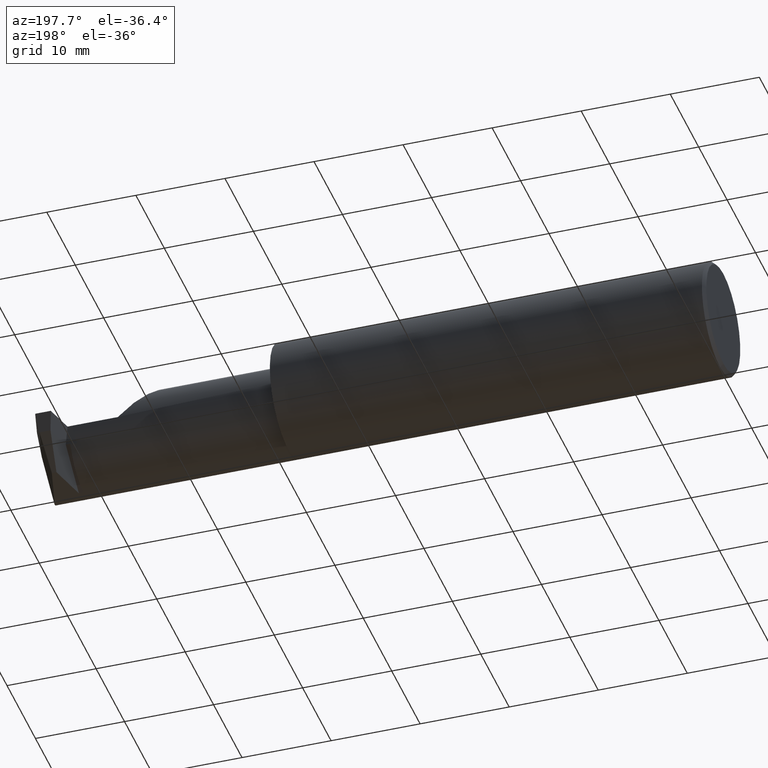
[diagram: clean part render]
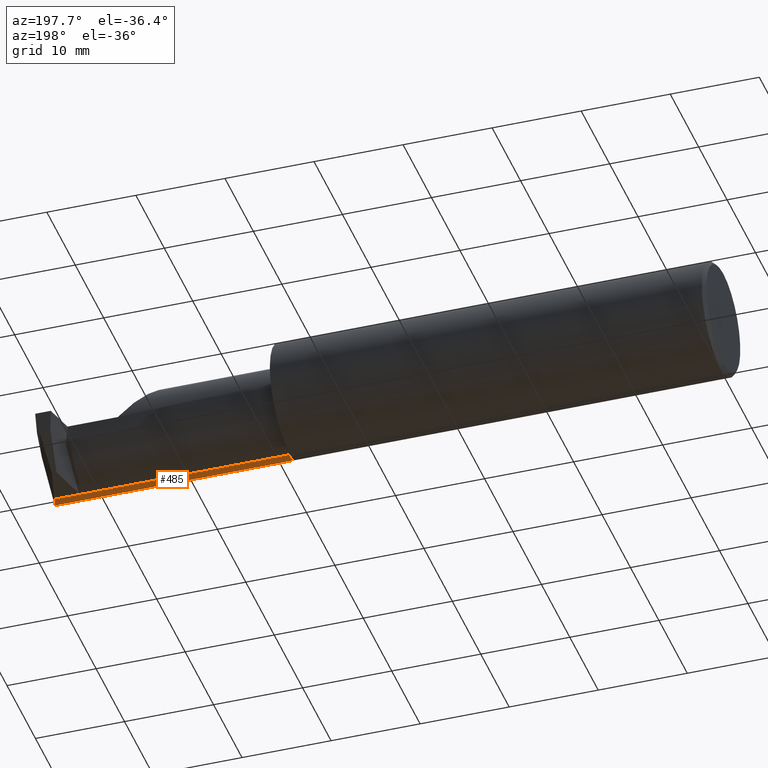
[diagram: same view with one face highlighted and labeled with its STEP entity id]
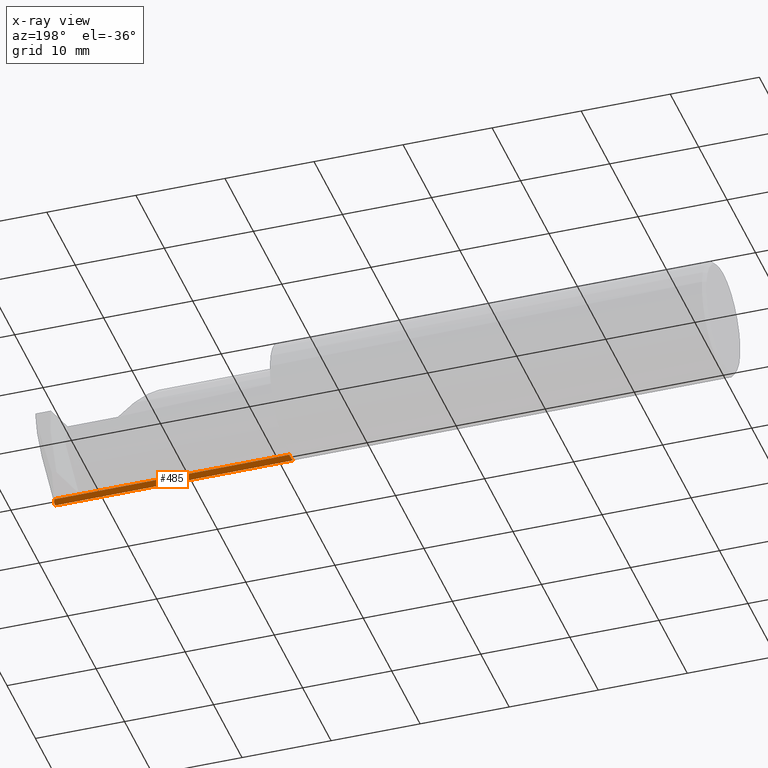
[diagram: x-ray of the same camera — body ghosted, the highlighted face saturated]
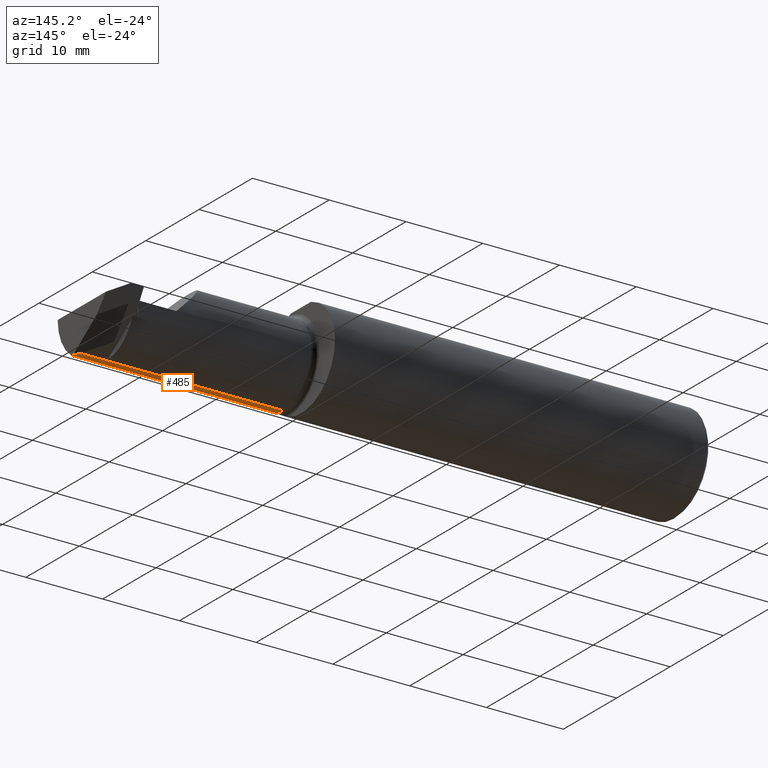
[diagram: same view with one face highlighted and labeled with its STEP entity id]
A machine part, auxiliary view. The second image highlights one B-rep face of the part: STEP entity #485.
The next image is the same camera in x-ray: the body ghosted, the highlighted face saturated — about 0% of this face is hidden behind the body in this view.
A second angle (auxiliary view) of the same face is appended — the face is thin or edge-on in the first view.
In plain terms, the highlighted cylindrical surface (partial cylindrical patch) has radius 5.2578 mm, axis along (-1, -0, -0).
Its self-contained STEP definition (entity closure, byte-faithful):
#9 = VECTOR ( 'NONE', #52, 39.37007874015748143 ) ;
#17 = CARTESIAN_POINT ( 'NONE',  ( 2.988377121087915977, -0.09685000000000003328, -0.2069999999999999341 ) ) ;
#19 = CARTESIAN_POINT ( 'NONE',  ( 1.950000000000000178, -0.09684999999999999165, -0.2070000000000000173 ) ) ;
#23 = EDGE_CURVE ( 'NONE', #37, #337, #227, .T. ) ;
#31 = DIRECTION ( 'NONE',  ( 1.000000000000000000, 0.000000000000000000, 0.000000000000000000 ) ) ;
#32 = ORIENTED_EDGE ( 'NONE', *, *, #887, .F. ) ;
#34 = FACE_OUTER_BOUND ( 'NONE', #805, .T. ) ;
#37 = VERTEX_POINT ( 'NONE', #773 ) ;
#52 = DIRECTION ( 'NONE',  ( -1.000000000000000000, -0.000000000000000000, -0.000000000000000000 ) ) ;
#96 = CARTESIAN_POINT ( 'NONE',  ( 2.991809236970782049, -0.1101210074274882600, -0.2069999999999999618 ) ) ;
#114 = LINE ( 'NONE', #616, #9 ) ;
#128 = DIRECTION ( 'NONE',  ( -1.000000000000000000, -0.000000000000000000, -0.000000000000000000 ) ) ;
#131 = CARTESIAN_POINT ( 'NONE',  ( 1.925000000000000266, -0.09685000000000000553, 0.000000000000000000 ) ) ;
#136 = VERTEX_POINT ( 'NONE', #909 ) ;
#144 = EDGE_CURVE ( 'NONE', #136, #337, #114, .T. ) ;
#172 = EDGE_CURVE ( 'NONE', #667, #37, #487, .T. ) ;
#214 = VECTOR ( 'NONE', #128, 39.37007874015748143 ) ;
#227 = CIRCLE ( 'NONE', #699, 0.2070000000000000173 ) ;
#257 = EDGE_CURVE ( 'NONE', #756, #519, #634, .T. ) ;
#265 = DIRECTION ( 'NONE',  ( -1.000000000000000000, -0.000000000000000000, -0.000000000000000000 ) ) ;
#275 = CARTESIAN_POINT ( 'NONE',  ( 3.000000000000000444, -0.09685000000000000553, 0.000000000000000000 ) ) ;
#296 = CARTESIAN_POINT ( 'NONE',  ( 2.988377121087915977, -0.09685000000000003328, -0.2069999999999999341 ) ) ;
#297 = ORIENTED_EDGE ( 'NONE', *, *, #23, .T. ) ;
#317 = DIRECTION ( 'NONE',  ( 0.000000000000000000, 0.000000000000000000, 1.000000000000000000 ) ) ;
#324 = CYLINDRICAL_SURFACE ( 'NONE', #896, 0.2070000000000000173 ) ;
#333 = CARTESIAN_POINT ( 'NONE',  ( 2.392500000000000071, -0.1494886164171399245, -0.2001953447552894949 ) ) ;
#337 = VERTEX_POINT ( 'NONE', #19 ) ;
#353 = CARTESIAN_POINT ( 'NONE',  ( 3.000000000000000444, -0.1363579360798492235, -0.2031947907469837944 ) ) ;
#394 = CIRCLE ( 'NONE', #789, 0.2069999999999999618 ) ;
#466 = LINE ( 'NONE', #895, #214 ) ;
#485 = ADVANCED_FACE ( 'NONE', ( #34 ), #324, .T. ) ;
#487 = LINE ( 'NONE', #333, #780 ) ;
#488 = DIRECTION ( 'NONE',  ( 0.000000000000000000, 0.000000000000000000, -1.000000000000000000 ) ) ;
#497 = DIRECTION ( 'NONE',  ( 1.000000000000000000, -0.000000000000000000, -0.000000000000000000 ) ) ;
#511 = CARTESIAN_POINT ( 'NONE',  ( 3.000000000000000444, -0.1494886164171398690, -0.2001953447552895227 ) ) ;
#519 = VERTEX_POINT ( 'NONE', #353 ) ;
#528 = ORIENTED_EDGE ( 'NONE', *, *, #172, .T. ) ;
#616 = CARTESIAN_POINT ( 'NONE',  ( 1.925000000000000266, -0.09684999999999999165, -0.2070000000000000173 ) ) ;
#634 =( BOUNDED_CURVE ( )  B_SPLINE_CURVE ( 3, ( #17, #96, #823, #673 ),
 .UNSPECIFIED., .F., .F. ) 
 B_SPLINE_CURVE_WITH_KNOTS ( ( 4, 4 ),
 ( 0.6108652381980214097, 0.8029030024377743491 ),
 .UNSPECIFIED. ) 
 CURVE ( )  GEOMETRIC_REPRESENTATION_ITEM ( )  RATIONAL_B_SPLINE_CURVE ( ( 1.000000000000000000, 0.9969291518527066964, 0.9969291518527066964, 1.000000000000000000 ) ) 
 REPRESENTATION_ITEM ( '' )  );
#667 = VERTEX_POINT ( 'NONE', #511 ) ;
#673 = CARTESIAN_POINT ( 'NONE',  ( 3.000000000000000444, -0.1363579360798492235, -0.2031947907469837944 ) ) ;
#687 = DIRECTION ( 'NONE',  ( -1.000000000000000000, -0.000000000000000000, -0.000000000000000000 ) ) ;
#699 = AXIS2_PLACEMENT_3D ( 'NONE', #901, #31, #488 ) ;
#756 = VERTEX_POINT ( 'NONE', #296 ) ;
#773 = CARTESIAN_POINT ( 'NONE',  ( 1.950000000000000178, -0.1494886164171399245, -0.2001953447552894949 ) ) ;
#780 = VECTOR ( 'NONE', #687, 39.37007874015748143 ) ;
#783 = ORIENTED_EDGE ( 'NONE', *, *, #257, .T. ) ;
#789 = AXIS2_PLACEMENT_3D ( 'NONE', #275, #497, #317 ) ;
#805 = EDGE_LOOP ( 'NONE', ( #842, #32, #783, #931, #528, #297 ) ) ;
#823 = CARTESIAN_POINT ( 'NONE',  ( 2.995695463954408222, -0.1233308849821192071, -0.2057276898443771151 ) ) ;
#842 = ORIENTED_EDGE ( 'NONE', *, *, #144, .F. ) ;
#844 = DIRECTION ( 'NONE',  ( 0.000000000000000000, 0.000000000000000000, 1.000000000000000000 ) ) ;
#846 = EDGE_CURVE ( 'NONE', #667, #519, #394, .T. ) ;
#887 = EDGE_CURVE ( 'NONE', #756, #136, #466, .T. ) ;
#895 = CARTESIAN_POINT ( 'NONE',  ( 3.000000000000000444, -0.09685000000000001941, -0.2069999999999999341 ) ) ;
#896 = AXIS2_PLACEMENT_3D ( 'NONE', #131, #265, #844 ) ;
#901 = CARTESIAN_POINT ( 'NONE',  ( 1.950000000000000178, -0.09685000000000000553, 0.000000000000000000 ) ) ;
#909 = CARTESIAN_POINT ( 'NONE',  ( 2.859999999999999876, -0.09685000000000001941, -0.2069999999999999341 ) ) ;
#931 = ORIENTED_EDGE ( 'NONE', *, *, #846, .F. ) ;